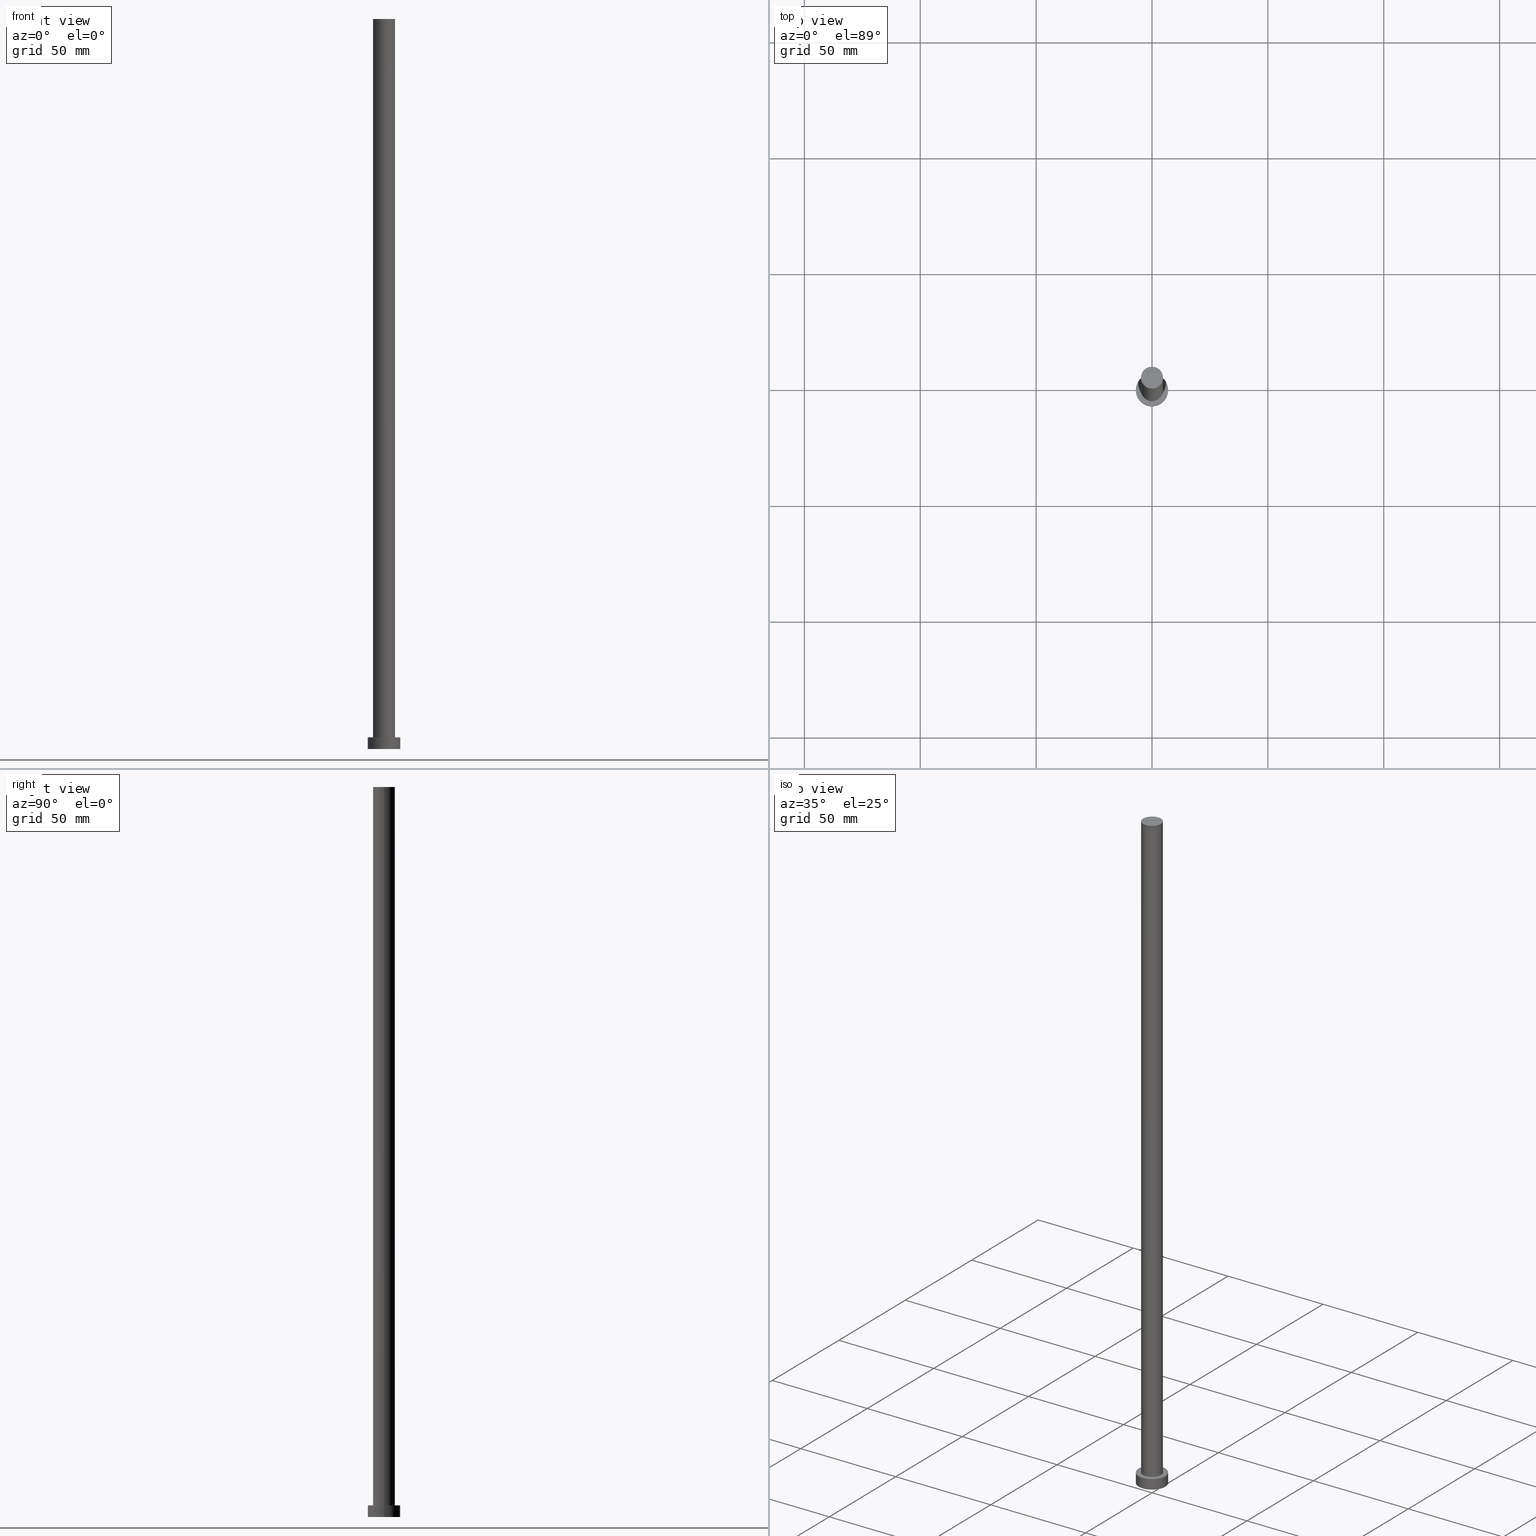
[diagram: canonical four-view strip — front | top / right | iso, engineering-drawing reading convention]
A machine part, canonical four-view strip (front | top / right | iso — engineering-drawing reading convention). The complete STEP part file that produces these views, byte-faithful:
ISO-10303-21;
HEADER;
FILE_DESCRIPTION (( 'STEP AP203' ),
    '1' );
FILE_NAME ('3c44.STEP',
    '2026-02-06T12:37:23',
    ( '' ),
    ( '' ),
    'SwSTEP 2.0',
    'SolidWorks 2019',
    '' );
FILE_SCHEMA (( 'CONFIG_CONTROL_DESIGN' ));
ENDSEC;

DATA;
#1 = APPROVAL_STATUS ( 'not_yet_approved' ) ;
#2 = CC_DESIGN_APPROVAL ( #101, ( #26 ) ) ;
#3 = PERSON_AND_ORGANIZATION_ROLE ( 'creator' ) ;
#4 = ADVANCED_FACE ( 'NONE', ( #144 ), #36, .F. ) ;
#5 = PERSON_AND_ORGANIZATION ( #132, #140 ) ;
#6 = CARTESIAN_POINT ( 'NONE',  ( 0.000000000000000000, 0.000000000000000000, 5.000000000000000000 ) ) ;
#7 = DIRECTION ( 'NONE',  ( -0.000000000000000000, -0.000000000000000000, -1.000000000000000000 ) ) ;
#8 = CARTESIAN_POINT ( 'NONE',  ( 0.000000000000000000, 0.000000000000000000, 315.0000000000000000 ) ) ;
#9 = CARTESIAN_POINT ( 'NONE',  ( 4.750000000000000888, 5.817072295949928412E-16, 315.0000000000000000 ) ) ;
#10 = COORDINATED_UNIVERSAL_TIME_OFFSET ( 1, 0, .AHEAD. ) ;
#11 = PRODUCT_DEFINITION ( 'NEZN�M�', '', #161, #76 ) ;
#12 = AXIS2_PLACEMENT_3D ( 'NONE', #146, #167, #62 ) ;
#13 = EDGE_LOOP ( 'NONE', ( #129, #252, #80, #16 ) ) ;
#14 = DATE_AND_TIME ( #34, #187 ) ;
#15 = ORIENTED_EDGE ( 'NONE', *, *, #148, .T. ) ;
#16 = ORIENTED_EDGE ( 'NONE', *, *, #100, .T. ) ;
#17 = EDGE_CURVE ( 'NONE', #41, #115, #228, .T. ) ;
#18 = PLANE ( 'NONE',  #12 ) ;
#19 = DIRECTION ( 'NONE',  ( 1.000000000000000000, 0.000000000000000000, 0.000000000000000000 ) ) ;
#20 = APPROVAL_PERSON_ORGANIZATION ( #171, #135, #202 ) ;
#21 = DIRECTION ( 'NONE',  ( 0.000000000000000000, 0.000000000000000000, 1.000000000000000000 ) ) ;
#22 = CALENDAR_DATE ( 2026, 6, 2 ) ;
#23 = CC_DESIGN_PERSON_AND_ORGANIZATION_ASSIGNMENT ( #174, #192, ( #26 ) ) ;
#24 = DIRECTION ( 'NONE',  ( 1.000000000000000000, 0.000000000000000000, 0.000000000000000000 ) ) ;
#25 = EDGE_CURVE ( 'NONE', #61, #205, #123, .T. ) ;
#26 = SECURITY_CLASSIFICATION ( '', '', #222 ) ;
#27 = DIRECTION ( 'NONE',  ( 0.000000000000000000, 0.000000000000000000, 1.000000000000000000 ) ) ;
#28 = DIRECTION ( 'NONE',  ( -0.000000000000000000, -0.000000000000000000, -1.000000000000000000 ) ) ;
#29 = CYLINDRICAL_SURFACE ( 'NONE', #196, 4.750000000000000888 ) ;
#30 = APPROVAL_STATUS ( 'not_yet_approved' ) ;
#31 = DIRECTION ( 'NONE',  ( 0.000000000000000000, 0.000000000000000000, 1.000000000000000000 ) ) ;
#32 = DIRECTION ( 'NONE',  ( -1.000000000000000000, 0.000000000000000000, 0.000000000000000000 ) ) ;
#33 = CARTESIAN_POINT ( 'NONE',  ( -7.000000000000000000, 0.000000000000000000, 5.000000000000000000 ) ) ;
#34 = CALENDAR_DATE ( 2026, 6, 2 ) ;
#35 = VECTOR ( 'NONE', #94, 1000.000000000000000 ) ;
#36 = PLANE ( 'NONE',  #59 ) ;
#37 = EDGE_LOOP ( 'NONE', ( #106, #126, #253, #180 ) ) ;
#38 = ADVANCED_FACE ( 'NONE', ( #185 ), #200, .T. ) ;
#39 = CIRCLE ( 'NONE', #120, 4.750000000000000888 ) ;
#40 = APPLICATION_CONTEXT ( 'configuration controlled 3d designs of mechanical parts and assemblies' ) ;
#41 = VERTEX_POINT ( 'NONE', #254 ) ;
#42 = COORDINATED_UNIVERSAL_TIME_OFFSET ( 1, 0, .AHEAD. ) ;
#43 = DIRECTION ( 'NONE',  ( 0.000000000000000000, 0.000000000000000000, 1.000000000000000000 ) ) ;
#44 = CC_DESIGN_DATE_AND_TIME_ASSIGNMENT ( #184, #60, ( #11 ) ) ;
#45 = CIRCLE ( 'NONE', #70, 7.000000000000000000 ) ;
#46 = DIRECTION ( 'NONE',  ( -0.000000000000000000, -0.000000000000000000, -1.000000000000000000 ) ) ;
#47 = DIRECTION ( 'NONE',  ( 0.000000000000000000, 0.000000000000000000, 1.000000000000000000 ) ) ;
#48 = DATE_AND_TIME ( #157, #147 ) ;
#49 =( LENGTH_UNIT ( ) NAMED_UNIT ( * ) SI_UNIT ( .MILLI., .METRE. ) );
#50 = CC_DESIGN_PERSON_AND_ORGANIZATION_ASSIGNMENT ( #87, #133, ( #161 ) ) ;
#51 = AXIS2_PLACEMENT_3D ( 'NONE', #134, #28, #226 ) ;
#52 = CYLINDRICAL_SURFACE ( 'NONE', #194, 7.000000000000000000 ) ;
#53 = EDGE_CURVE ( 'NONE', #115, #41, #39, .T. ) ;
#54 = COORDINATED_UNIVERSAL_TIME_OFFSET ( 1, 0, .AHEAD. ) ;
#55 = CC_DESIGN_APPROVAL ( #135, ( #11 ) ) ;
#56 = PRODUCT_DEFINITION_SHAPE ( 'NONE', 'NONE',  #11 ) ;
#57 = ORIENTED_EDGE ( 'NONE', *, *, #102, .T. ) ;
#58 = DIRECTION ( 'NONE',  ( 0.000000000000000000, 0.000000000000000000, 1.000000000000000000 ) ) ;
#59 = AXIS2_PLACEMENT_3D ( 'NONE', #83, #122, #163 ) ;
#60 = DATE_TIME_ROLE ( 'creation_date' ) ;
#61 = VERTEX_POINT ( 'NONE', #181 ) ;
#62 = DIRECTION ( 'NONE',  ( 1.000000000000000000, 0.000000000000000000, -0.000000000000000000 ) ) ;
#63 = DATE_AND_TIME ( #243, #113 ) ;
#64 = CARTESIAN_POINT ( 'NONE',  ( 0.000000000000000000, 0.000000000000000000, 0.000000000000000000 ) ) ;
#65 = FACE_OUTER_BOUND ( 'NONE', #13, .T. ) ;
#66 = CARTESIAN_POINT ( 'NONE',  ( -4.750000000000000888, 0.000000000000000000, 315.0000000000000000 ) ) ;
#67 = PERSON_AND_ORGANIZATION ( #132, #140 ) ;
#68 =( NAMED_UNIT ( * ) PLANE_ANGLE_UNIT ( ) SI_UNIT ( $, .RADIAN. ) );
#69 = UNCERTAINTY_MEASURE_WITH_UNIT (LENGTH_MEASURE( 1.000000000000000082E-05 ), #49, 'distance_accuracy_value', 'NONE');
#70 = AXIS2_PLACEMENT_3D ( 'NONE', #223, #27, #190 ) ;
#71 = EDGE_LOOP ( 'NONE', ( #142, #233 ) ) ;
#72 = APPROVAL_ROLE ( '' ) ;
#73 = CC_DESIGN_APPROVAL ( #251, ( #161 ) ) ;
#74 = AXIS2_PLACEMENT_3D ( 'NONE', #173, #152, #225 ) ;
#75 = EDGE_LOOP ( 'NONE', ( #82, #213, #15, #186 ) ) ;
#76 = DESIGN_CONTEXT ( 'detailed design', #40, 'design' ) ;
#77 = ORIENTED_EDGE ( 'NONE', *, *, #17, .F. ) ;
#78 = ORIENTED_EDGE ( 'NONE', *, *, #100, .F. ) ;
#79 = CIRCLE ( 'NONE', #164, 7.000000000000000000 ) ;
#80 = ORIENTED_EDGE ( 'NONE', *, *, #245, .T. ) ;
#81 = FACE_OUTER_BOUND ( 'NONE', #229, .T. ) ;
#82 = ORIENTED_EDGE ( 'NONE', *, *, #250, .F. ) ;
#83 = CARTESIAN_POINT ( 'NONE',  ( 0.000000000000000000, 0.000000000000000000, 0.000000000000000000 ) ) ;
#84 = CIRCLE ( 'NONE', #117, 4.750000000000000888 ) ;
#85 = PERSON_AND_ORGANIZATION ( #132, #140 ) ;
#86 = PLANE ( 'NONE',  #230 ) ;
#87 = PERSON_AND_ORGANIZATION ( #132, #140 ) ;
#88 = CARTESIAN_POINT ( 'NONE',  ( -7.000000000000000000, 0.000000000000000000, 5.000000000000000000 ) ) ;
#89 = ADVANCED_FACE ( 'NONE', ( #81 ), #18, .T. ) ;
#90 = DIRECTION ( 'NONE',  ( -1.000000000000000000, 0.000000000000000000, 0.000000000000000000 ) ) ;
#91 = APPROVAL_PERSON_ORGANIZATION ( #218, #251, #199 ) ;
#92 = COORDINATED_UNIVERSAL_TIME_OFFSET ( 1, 0, .AHEAD. ) ;
#93 = DIRECTION ( 'NONE',  ( -0.000000000000000000, -0.000000000000000000, -1.000000000000000000 ) ) ;
#94 = DIRECTION ( 'NONE',  ( -0.000000000000000000, -0.000000000000000000, -1.000000000000000000 ) ) ;
#95 = EDGE_CURVE ( 'NONE', #160, #61, #105, .T. ) ;
#96 =( NAMED_UNIT ( * ) SI_UNIT ( $, .STERADIAN. ) SOLID_ANGLE_UNIT ( ) );
#97 = VERTEX_POINT ( 'NONE', #130 ) ;
#98 = MANIFOLD_SOLID_BREP ( 'P�idat vysunut�m3', #216 ) ;
#99 = EDGE_LOOP ( 'NONE', ( #77, #246 ) ) ;
#100 = EDGE_CURVE ( 'NONE', #97, #205, #45, .T. ) ;
#101 = APPROVAL ( #162, 'NEUR�EN�' ) ;
#102 = EDGE_CURVE ( 'NONE', #203, #104, #235, .T. ) ;
#103 = ORIENTED_EDGE ( 'NONE', *, *, #119, .F. ) ;
#104 = VERTEX_POINT ( 'NONE', #175 ) ;
#105 = CIRCLE ( 'NONE', #182, 7.000000000000000000 ) ;
#106 = ORIENTED_EDGE ( 'NONE', *, *, #188, .F. ) ;
#107 = DIRECTION ( 'NONE',  ( 0.000000000000000000, 0.000000000000000000, 1.000000000000000000 ) ) ;
#108 = ADVANCED_FACE ( 'NONE', ( #209, #221 ), #86, .T. ) ;
#109 = CALENDAR_DATE ( 2026, 6, 2 ) ;
#110 = APPROVAL_DATE_TIME ( #63, #251 ) ;
#111 = VECTOR ( 'NONE', #7, 1000.000000000000000 ) ;
#112 = DIRECTION ( 'NONE',  ( 0.000000000000000000, 0.000000000000000000, 1.000000000000000000 ) ) ;
#113 = LOCAL_TIME ( 13, 37, 23.00000000000000000, #10 ) ;
#114 = CC_DESIGN_PERSON_AND_ORGANIZATION_ASSIGNMENT ( #85, #237, ( #11 ) ) ;
#115 = VERTEX_POINT ( 'NONE', #238 ) ;
#116 = SHAPE_DEFINITION_REPRESENTATION ( #56, #166 ) ;
#117 = AXIS2_PLACEMENT_3D ( 'NONE', #193, #211, #159 ) ;
#118 = EDGE_CURVE ( 'NONE', #61, #160, #145, .T. ) ;
#119 = EDGE_CURVE ( 'NONE', #205, #97, #79, .T. ) ;
#120 = AXIS2_PLACEMENT_3D ( 'NONE', #197, #21, #19 ) ;
#121 = CARTESIAN_POINT ( 'NONE',  ( 0.000000000000000000, 0.000000000000000000, 315.0000000000000000 ) ) ;
#122 = DIRECTION ( 'NONE',  ( 0.000000000000000000, 0.000000000000000000, 1.000000000000000000 ) ) ;
#123 = LINE ( 'NONE', #198, #214 ) ;
#124 =( GEOMETRIC_REPRESENTATION_CONTEXT ( 3 ) GLOBAL_UNCERTAINTY_ASSIGNED_CONTEXT ( ( #69 ) ) GLOBAL_UNIT_ASSIGNED_CONTEXT ( ( #49, #68, #96 ) ) REPRESENTATION_CONTEXT ( 'NONE', 'WORKASPACE' ) );
#125 = COORDINATED_UNIVERSAL_TIME_OFFSET ( 1, 0, .AHEAD. ) ;
#126 = ORIENTED_EDGE ( 'NONE', *, *, #250, .T. ) ;
#127 = PERSON_AND_ORGANIZATION_ROLE ( 'design_owner' ) ;
#128 = CC_DESIGN_DATE_AND_TIME_ASSIGNMENT ( #48, #138, ( #26 ) ) ;
#129 = ORIENTED_EDGE ( 'NONE', *, *, #25, .F. ) ;
#130 = CARTESIAN_POINT ( 'NONE',  ( -7.000000000000000000, 0.000000000000000000, 0.000000000000000000 ) ) ;
#131 = DIRECTION ( 'NONE',  ( 1.000000000000000000, 0.000000000000000000, 0.000000000000000000 ) ) ;
#132 = PERSON ( 'NEUR�EN�', 'NEUR�EN�', 'NEUR�EN�', ('NEUR�EN�'), ('NEUR�EN�'), ('NEUR�EN�') ) ;
#133 = PERSON_AND_ORGANIZATION_ROLE ( 'design_supplier' ) ;
#134 = CARTESIAN_POINT ( 'NONE',  ( 0.000000000000000000, 0.000000000000000000, 5.000000000000000000 ) ) ;
#135 = APPROVAL ( #1, 'NEUR�EN�' ) ;
#136 = CARTESIAN_POINT ( 'NONE',  ( 0.000000000000000000, 0.000000000000000000, 315.0000000000000000 ) ) ;
#137 = CARTESIAN_POINT ( 'NONE',  ( 0.000000000000000000, 0.000000000000000000, 5.000000000000000000 ) ) ;
#138 = DATE_TIME_ROLE ( 'classification_date' ) ;
#139 = PRODUCT ( '3c44', '3c44', '', ( #149 ) ) ;
#140 = ORGANIZATION ( 'NEUR�EN�', 'NEUR�EN�', '' ) ;
#141 = APPROVAL_DATE_TIME ( #14, #101 ) ;
#142 = ORIENTED_EDGE ( 'NONE', *, *, #95, .T. ) ;
#143 = APPLICATION_CONTEXT ( 'configuration controlled 3d designs of mechanical parts and assemblies' ) ;
#144 = FACE_OUTER_BOUND ( 'NONE', #195, .T. ) ;
#145 = CIRCLE ( 'NONE', #74, 7.000000000000000000 ) ;
#146 = CARTESIAN_POINT ( 'NONE',  ( 0.000000000000000000, 0.000000000000000000, 315.0000000000000000 ) ) ;
#147 = LOCAL_TIME ( 13, 37, 23.00000000000000000, #92 ) ;
#148 = EDGE_CURVE ( 'NONE', #203, #41, #191, .T. ) ;
#149 = MECHANICAL_CONTEXT ( 'NONE', #143, 'mechanical' ) ;
#150 = APPLICATION_PROTOCOL_DEFINITION ( 'international standard', 'config_control_design', 1994, #143 ) ;
#151 = ADVANCED_FACE ( 'NONE', ( #240 ), #29, .T. ) ;
#152 = DIRECTION ( 'NONE',  ( 0.000000000000000000, 0.000000000000000000, 1.000000000000000000 ) ) ;
#153 = DIRECTION ( 'NONE',  ( 1.000000000000000000, 0.000000000000000000, 0.000000000000000000 ) ) ;
#154 = CC_DESIGN_PERSON_AND_ORGANIZATION_ASSIGNMENT ( #5, #127, ( #139 ) ) ;
#155 = DIRECTION ( 'NONE',  ( -0.000000000000000000, -0.000000000000000000, -1.000000000000000000 ) ) ;
#156 = CARTESIAN_POINT ( 'NONE',  ( -4.750000000000000888, 0.000000000000000000, 315.0000000000000000 ) ) ;
#157 = CALENDAR_DATE ( 2026, 6, 2 ) ;
#158 = CYLINDRICAL_SURFACE ( 'NONE', #51, 7.000000000000000000 ) ;
#159 = DIRECTION ( 'NONE',  ( 1.000000000000000000, 0.000000000000000000, 0.000000000000000000 ) ) ;
#160 = VERTEX_POINT ( 'NONE', #88 ) ;
#161 = PRODUCT_DEFINITION_FORMATION_WITH_SPECIFIED_SOURCE ( 'LIBOVOLN�', '', #139, .NOT_KNOWN. ) ;
#162 = APPROVAL_STATUS ( 'not_yet_approved' ) ;
#163 = DIRECTION ( 'NONE',  ( 1.000000000000000000, 0.000000000000000000, -0.000000000000000000 ) ) ;
#164 = AXIS2_PLACEMENT_3D ( 'NONE', #64, #43, #153 ) ;
#165 = ORIENTED_EDGE ( 'NONE', *, *, #245, .F. ) ;
#166 = ADVANCED_BREP_SHAPE_REPRESENTATION ( '3c44', ( #98, #179 ), #124 ) ;
#167 = DIRECTION ( 'NONE',  ( 0.000000000000000000, 0.000000000000000000, 1.000000000000000000 ) ) ;
#168 = CC_DESIGN_PERSON_AND_ORGANIZATION_ASSIGNMENT ( #67, #3, ( #161 ) ) ;
#169 = DIRECTION ( 'NONE',  ( 1.000000000000000000, 0.000000000000000000, 0.000000000000000000 ) ) ;
#170 = DIRECTION ( 'NONE',  ( -0.000000000000000000, -0.000000000000000000, -1.000000000000000000 ) ) ;
#171 = PERSON_AND_ORGANIZATION ( #132, #140 ) ;
#172 = PRODUCT_RELATED_PRODUCT_CATEGORY ( 'detail', '', ( #139 ) ) ;
#173 = CARTESIAN_POINT ( 'NONE',  ( 0.000000000000000000, 0.000000000000000000, 5.000000000000000000 ) ) ;
#174 = PERSON_AND_ORGANIZATION ( #132, #140 ) ;
#175 = CARTESIAN_POINT ( 'NONE',  ( 4.750000000000000888, 5.817072295949928412E-16, 315.0000000000000000 ) ) ;
#176 = LOCAL_TIME ( 13, 37, 23.00000000000000000, #125 ) ;
#177 = LINE ( 'NONE', #33, #35 ) ;
#178 = CC_DESIGN_SECURITY_CLASSIFICATION ( #26, ( #161 ) ) ;
#179 = AXIS2_PLACEMENT_3D ( 'NONE', #189, #107, #169 ) ;
#180 = ORIENTED_EDGE ( 'NONE', *, *, #148, .F. ) ;
#181 = CARTESIAN_POINT ( 'NONE',  ( 7.000000000000000000, 8.572527594031473190E-16, 5.000000000000000000 ) ) ;
#182 = AXIS2_PLACEMENT_3D ( 'NONE', #6, #47, #131 ) ;
#183 = DIRECTION ( 'NONE',  ( -1.000000000000000000, 0.000000000000000000, 0.000000000000000000 ) ) ;
#184 = DATE_AND_TIME ( #22, #201 ) ;
#185 = FACE_OUTER_BOUND ( 'NONE', #37, .T. ) ;
#186 = ORIENTED_EDGE ( 'NONE', *, *, #17, .T. ) ;
#187 = LOCAL_TIME ( 13, 37, 23.00000000000000000, #54 ) ;
#188 = EDGE_CURVE ( 'NONE', #104, #203, #84, .T. ) ;
#189 = CARTESIAN_POINT ( 'NONE',  ( 0.000000000000000000, 0.000000000000000000, 0.000000000000000000 ) ) ;
#190 = DIRECTION ( 'NONE',  ( 1.000000000000000000, 0.000000000000000000, 0.000000000000000000 ) ) ;
#191 = LINE ( 'NONE', #66, #241 ) ;
#192 = PERSON_AND_ORGANIZATION_ROLE ( 'classification_officer' ) ;
#193 = CARTESIAN_POINT ( 'NONE',  ( 0.000000000000000000, 0.000000000000000000, 315.0000000000000000 ) ) ;
#194 = AXIS2_PLACEMENT_3D ( 'NONE', #137, #93, #32 ) ;
#195 = EDGE_LOOP ( 'NONE', ( #78, #103 ) ) ;
#196 = AXIS2_PLACEMENT_3D ( 'NONE', #8, #155, #90 ) ;
#197 = CARTESIAN_POINT ( 'NONE',  ( 0.000000000000000000, 0.000000000000000000, 5.000000000000000000 ) ) ;
#198 = CARTESIAN_POINT ( 'NONE',  ( 7.000000000000000000, 8.572527594031473190E-16, 5.000000000000000000 ) ) ;
#199 = APPROVAL_ROLE ( '' ) ;
#200 = CYLINDRICAL_SURFACE ( 'NONE', #212, 4.750000000000000888 ) ;
#201 = LOCAL_TIME ( 13, 37, 23.00000000000000000, #42 ) ;
#202 = APPROVAL_ROLE ( '' ) ;
#203 = VERTEX_POINT ( 'NONE', #156 ) ;
#204 = APPROVAL_DATE_TIME ( #234, #135 ) ;
#205 = VERTEX_POINT ( 'NONE', #224 ) ;
#206 = DIRECTION ( 'NONE',  ( 1.000000000000000000, 0.000000000000000000, -0.000000000000000000 ) ) ;
#207 = AXIS2_PLACEMENT_3D ( 'NONE', #136, #112, #239 ) ;
#208 = CARTESIAN_POINT ( 'NONE',  ( 0.000000000000000000, 0.000000000000000000, 5.000000000000000000 ) ) ;
#209 = FACE_BOUND ( 'NONE', #99, .T. ) ;
#210 = APPROVAL_PERSON_ORGANIZATION ( #247, #101, #72 ) ;
#211 = DIRECTION ( 'NONE',  ( 0.000000000000000000, 0.000000000000000000, 1.000000000000000000 ) ) ;
#212 = AXIS2_PLACEMENT_3D ( 'NONE', #121, #170, #183 ) ;
#213 = ORIENTED_EDGE ( 'NONE', *, *, #102, .F. ) ;
#214 = VECTOR ( 'NONE', #215, 1000.000000000000000 ) ;
#215 = DIRECTION ( 'NONE',  ( -0.000000000000000000, -0.000000000000000000, -1.000000000000000000 ) ) ;
#216 = CLOSED_SHELL ( 'NONE', ( #38, #227, #255, #108, #4, #151, #89 ) ) ;
#217 = EDGE_LOOP ( 'NONE', ( #231, #236, #219, #165 ) ) ;
#218 = PERSON_AND_ORGANIZATION ( #132, #140 ) ;
#219 = ORIENTED_EDGE ( 'NONE', *, *, #119, .T. ) ;
#220 = APPLICATION_PROTOCOL_DEFINITION ( 'international standard', 'config_control_design', 1994, #40 ) ;
#221 = FACE_OUTER_BOUND ( 'NONE', #71, .T. ) ;
#222 = SECURITY_CLASSIFICATION_LEVEL ( 'unclassified' ) ;
#223 = CARTESIAN_POINT ( 'NONE',  ( 0.000000000000000000, 0.000000000000000000, 0.000000000000000000 ) ) ;
#224 = CARTESIAN_POINT ( 'NONE',  ( 7.000000000000000000, 8.572527594031473190E-16, 0.000000000000000000 ) ) ;
#225 = DIRECTION ( 'NONE',  ( 1.000000000000000000, 0.000000000000000000, 0.000000000000000000 ) ) ;
#226 = DIRECTION ( 'NONE',  ( -1.000000000000000000, 0.000000000000000000, 0.000000000000000000 ) ) ;
#227 = ADVANCED_FACE ( 'NONE', ( #242 ), #52, .T. ) ;
#228 = CIRCLE ( 'NONE', #249, 4.750000000000000888 ) ;
#229 = EDGE_LOOP ( 'NONE', ( #57, #248 ) ) ;
#230 = AXIS2_PLACEMENT_3D ( 'NONE', #208, #31, #206 ) ;
#231 = ORIENTED_EDGE ( 'NONE', *, *, #118, .F. ) ;
#232 = CARTESIAN_POINT ( 'NONE',  ( 0.000000000000000000, 0.000000000000000000, 5.000000000000000000 ) ) ;
#233 = ORIENTED_EDGE ( 'NONE', *, *, #118, .T. ) ;
#234 = DATE_AND_TIME ( #109, #176 ) ;
#235 = CIRCLE ( 'NONE', #207, 4.750000000000000888 ) ;
#236 = ORIENTED_EDGE ( 'NONE', *, *, #25, .T. ) ;
#237 = PERSON_AND_ORGANIZATION_ROLE ( 'creator' ) ;
#238 = CARTESIAN_POINT ( 'NONE',  ( 4.750000000000000888, 5.817072295949928412E-16, 5.000000000000000000 ) ) ;
#239 = DIRECTION ( 'NONE',  ( 1.000000000000000000, 0.000000000000000000, 0.000000000000000000 ) ) ;
#240 = FACE_OUTER_BOUND ( 'NONE', #75, .T. ) ;
#241 = VECTOR ( 'NONE', #46, 1000.000000000000000 ) ;
#242 = FACE_OUTER_BOUND ( 'NONE', #217, .T. ) ;
#243 = CALENDAR_DATE ( 2026, 6, 2 ) ;
#244 = LINE ( 'NONE', #9, #111 ) ;
#245 = EDGE_CURVE ( 'NONE', #160, #97, #177, .T. ) ;
#246 = ORIENTED_EDGE ( 'NONE', *, *, #53, .F. ) ;
#247 = PERSON_AND_ORGANIZATION ( #132, #140 ) ;
#248 = ORIENTED_EDGE ( 'NONE', *, *, #188, .T. ) ;
#249 = AXIS2_PLACEMENT_3D ( 'NONE', #232, #58, #24 ) ;
#250 = EDGE_CURVE ( 'NONE', #104, #115, #244, .T. ) ;
#251 = APPROVAL ( #30, 'NEUR�EN�' ) ;
#252 = ORIENTED_EDGE ( 'NONE', *, *, #95, .F. ) ;
#253 = ORIENTED_EDGE ( 'NONE', *, *, #53, .T. ) ;
#254 = CARTESIAN_POINT ( 'NONE',  ( -4.750000000000000888, 0.000000000000000000, 5.000000000000000000 ) ) ;
#255 = ADVANCED_FACE ( 'NONE', ( #65 ), #158, .T. ) ;
ENDSEC;
END-ISO-10303-21;
